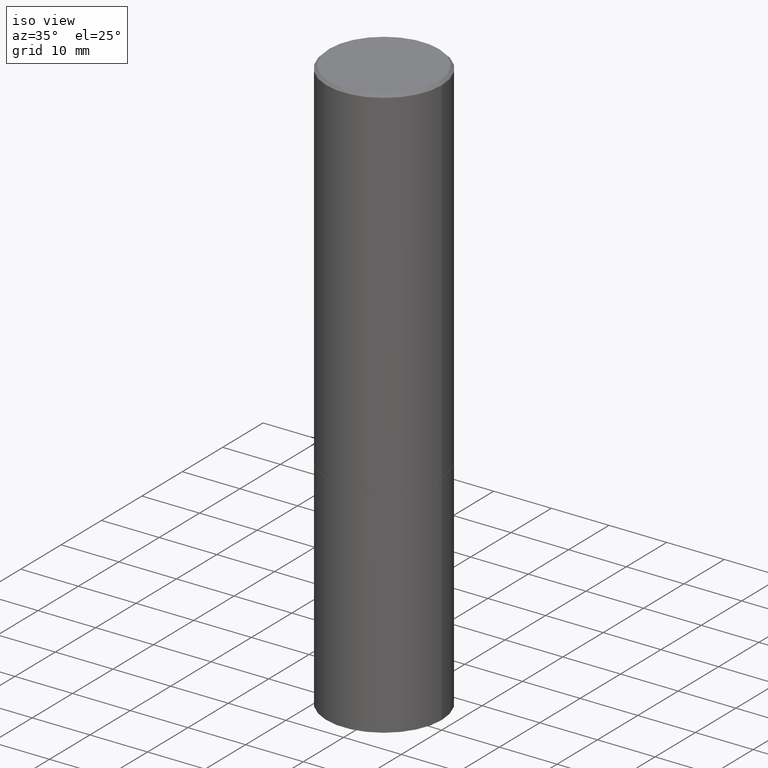
[diagram: clean part render]
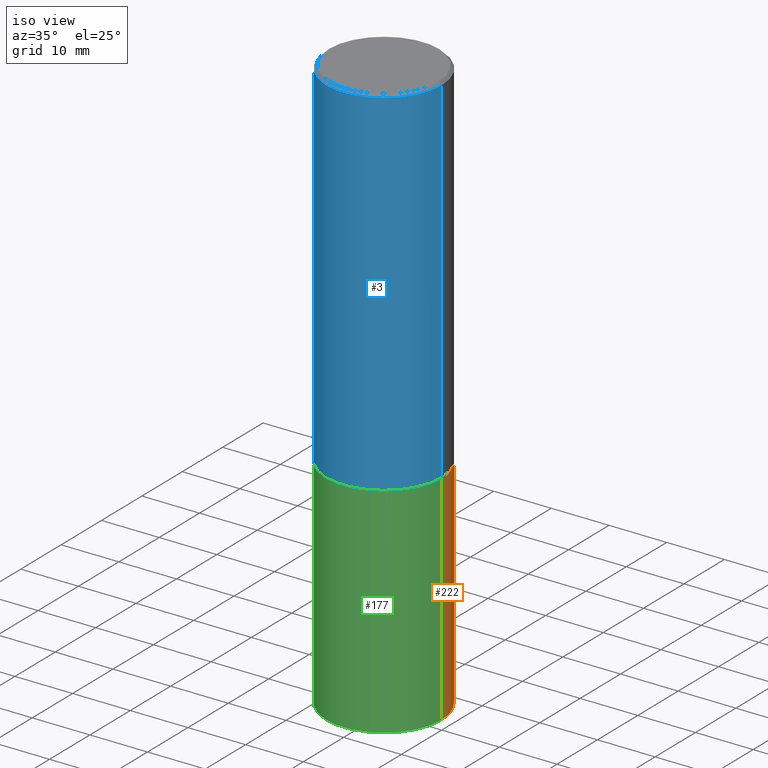
[diagram: same view with three faces highlighted in distinct colors, each labeled with its STEP entity id]
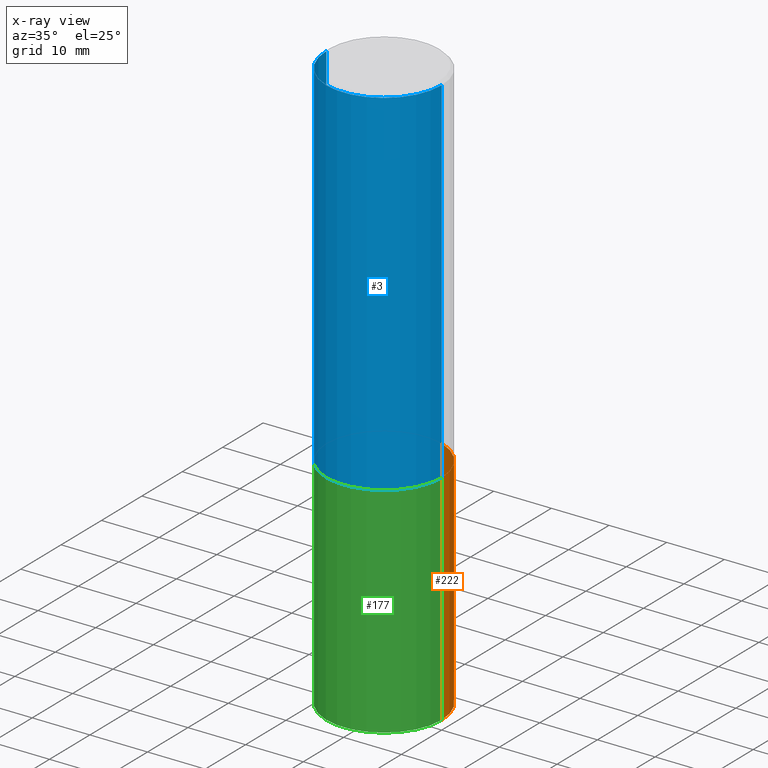
[diagram: x-ray of the same camera — body ghosted, the three highlighted faces saturated]
A machine part, iso view with three faces highlighted in distinct colors.
The next image is the same camera in x-ray (body ghosted, the three faces saturated) — at least one of them is partly hidden behind the body in this view.
Their STEP definitions:

[orange] entity #222 — the highlighted cylindrical surface (partial cylindrical patch) has radius 10 mm, axis along (-0, 0, 1).
#5 = AXIS2_PLACEMENT_3D ( 'NONE', #167, #360, #86 ) ;
#9 = EDGE_CURVE ( 'NONE', #346, #365, #58, .T. ) ;
#19 = DIRECTION ( 'NONE',  ( -2.445468806185136597E-29, 3.491481338843145583E-15, 1.000000000000000000 ) ) ;
#24 = CARTESIAN_POINT ( 'NONE',  ( 0.3937000000000000499, -1.127154920618731776E-14, -2.440900000000000070 ) ) ;
#25 = CARTESIAN_POINT ( 'NONE',  ( -0.3937000000000000499, 2.797406750687514786E-15, -1.936584745033356735E-29 ) ) ;
#32 = EDGE_CURVE ( 'NONE', #277, #221, #299, .T. ) ;
#38 = CYLINDRICAL_SURFACE ( 'NONE', #308, 0.3937000000000000499 ) ;
#43 = EDGE_LOOP ( 'NONE', ( #213, #45, #242, #122 ) ) ;
#45 = ORIENTED_EDGE ( 'NONE', *, *, #32, .T. ) ;
#48 = CARTESIAN_POINT ( 'NONE',  ( 5.969144809017300159E-29, -8.522356799982234543E-15, -2.440900000000000070 ) ) ;
#50 = DIRECTION ( 'NONE',  ( -2.445468806185136877E-29, 3.491481338843145188E-15, 1.000000000000000000 ) ) ;
#58 = LINE ( 'NONE', #88, #89 ) ;
#61 = DIRECTION ( 'NONE',  ( -2.445468806185136877E-29, 3.491481338843145188E-15, 1.000000000000000000 ) ) ;
#86 = DIRECTION ( 'NONE',  ( 1.000000000000000000, -6.982962677686267499E-15, 0.000000000000000000 ) ) ;
#88 = CARTESIAN_POINT ( 'NONE',  ( 0.3937000000000000499, -2.749192406205083217E-15, 1.919750796630860172E-29 ) ) ;
#89 = VECTOR ( 'NONE', #61, 39.37007874015748143 ) ;
#101 = CARTESIAN_POINT ( 'NONE',  ( -0.3937000000000000499, -8.336752664816334981E-15, -3.937000000000000277 ) ) ;
#108 = EDGE_CURVE ( 'NONE', #346, #277, #270, .T. ) ;
#122 = ORIENTED_EDGE ( 'NONE', *, *, #9, .F. ) ;
#139 = CIRCLE ( 'NONE', #286, 0.3937000000000000499 ) ;
#154 = DIRECTION ( 'NONE',  ( 1.000000000000000000, -6.982962677686265922E-15, 4.876176775795935793E-29 ) ) ;
#162 = CARTESIAN_POINT ( 'NONE',  ( 0.3937000000000000499, -1.649515443723054663E-14, -3.937000000000000277 ) ) ;
#167 = CARTESIAN_POINT ( 'NONE',  ( 9.627810689950883669E-29, -1.374596203102546341E-14, -3.937000000000000277 ) ) ;
#184 = CARTESIAN_POINT ( 'NONE',  ( -0.3937000000000000499, -8.336752664816334981E-15, -2.440900000000000070 ) ) ;
#210 = DIRECTION ( 'NONE',  ( -2.445468806185136597E-29, 3.491481338843145583E-15, 1.000000000000000000 ) ) ;
#213 = ORIENTED_EDGE ( 'NONE', *, *, #108, .T. ) ;
#221 = VERTEX_POINT ( 'NONE', #184 ) ;
#222 = ADVANCED_FACE ( 'NONE', ( #237 ), #38, .T. ) ;
#237 = FACE_OUTER_BOUND ( 'NONE', #43, .T. ) ;
#242 = ORIENTED_EDGE ( 'NONE', *, *, #316, .F. ) ;
#249 = DIRECTION ( 'NONE',  ( 1.000000000000000000, -6.982962677686267499E-15, 0.000000000000000000 ) ) ;
#265 = CARTESIAN_POINT ( 'NONE',  ( 0.000000000000000000, 0.000000000000000000, 0.000000000000000000 ) ) ;
#270 = CIRCLE ( 'NONE', #5, 0.3937000000000000499 ) ;
#277 = VERTEX_POINT ( 'NONE', #101 ) ;
#286 = AXIS2_PLACEMENT_3D ( 'NONE', #48, #19, #249 ) ;
#299 = LINE ( 'NONE', #25, #313 ) ;
#308 = AXIS2_PLACEMENT_3D ( 'NONE', #265, #210, #154 ) ;
#313 = VECTOR ( 'NONE', #50, 39.37007874015748143 ) ;
#316 = EDGE_CURVE ( 'NONE', #365, #221, #139, .T. ) ;
#346 = VERTEX_POINT ( 'NONE', #162 ) ;
#360 = DIRECTION ( 'NONE',  ( -2.445468806185136597E-29, 3.491481338843145583E-15, 1.000000000000000000 ) ) ;
#365 = VERTEX_POINT ( 'NONE', #24 ) ;

[blue] entity #3 — the highlighted cylindrical surface (partial cylindrical patch) has radius 10 mm, axis along (-0, 0, 1).
#1 = EDGE_CURVE ( 'NONE', #264, #202, #20, .T. ) ;
#3 = ADVANCED_FACE ( 'NONE', ( #133 ), #112, .T. ) ;
#16 = VERTEX_POINT ( 'NONE', #329 ) ;
#20 = LINE ( 'NONE', #197, #280 ) ;
#28 = AXIS2_PLACEMENT_3D ( 'NONE', #109, #333, #83 ) ;
#29 = CARTESIAN_POINT ( 'NONE',  ( 0.000000000000000000, 0.000000000000000000, 0.000000000000000000 ) ) ;
#40 = ORIENTED_EDGE ( 'NONE', *, *, #110, .F. ) ;
#41 = CARTESIAN_POINT ( 'NONE',  ( 5.966699340211115678E-29, -8.518865318643391536E-15, -2.439900000000000180 ) ) ;
#49 = EDGE_LOOP ( 'NONE', ( #240, #362, #69, #40 ) ) ;
#53 = CARTESIAN_POINT ( 'NONE',  ( 0.3936999999999997724, -2.770807688499513762E-15, -0.02000000000000009062 ) ) ;
#69 = ORIENTED_EDGE ( 'NONE', *, *, #292, .T. ) ;
#73 = DIRECTION ( 'NONE',  ( -2.445468806185136597E-29, 3.491481338843145583E-15, 1.000000000000000000 ) ) ;
#83 = DIRECTION ( 'NONE',  ( 1.000000000000000000, -6.982962677686266711E-15, 0.000000000000000000 ) ) ;
#100 = VERTEX_POINT ( 'NONE', #53 ) ;
#105 = CIRCLE ( 'NONE', #175, 0.3937000000000000499 ) ;
#109 = CARTESIAN_POINT ( 'NONE',  ( 4.890937612370295054E-31, -6.982962677686322424E-17, -0.02000000000000009062 ) ) ;
#110 = EDGE_CURVE ( 'NONE', #202, #100, #281, .T. ) ;
#112 = CYLINDRICAL_SURFACE ( 'NONE', #180, 0.3936999999999998834 ) ;
#133 = FACE_OUTER_BOUND ( 'NONE', #49, .T. ) ;
#175 = AXIS2_PLACEMENT_3D ( 'NONE', #41, #73, #212 ) ;
#180 = AXIS2_PLACEMENT_3D ( 'NONE', #29, #232, #224 ) ;
#196 = DIRECTION ( 'NONE',  ( -2.445468806185136877E-29, 3.491481338843145188E-15, 1.000000000000000000 ) ) ;
#197 = CARTESIAN_POINT ( 'NONE',  ( -0.3936999999999998834, 2.797406750687513603E-15, -1.936584745033355895E-29 ) ) ;
#202 = VERTEX_POINT ( 'NONE', #283 ) ;
#208 = EDGE_CURVE ( 'NONE', #264, #16, #105, .T. ) ;
#212 = DIRECTION ( 'NONE',  ( 1.000000000000000000, -6.982962677686265133E-15, 0.000000000000000000 ) ) ;
#224 = DIRECTION ( 'NONE',  ( 1.000000000000000000, -6.982962677686266711E-15, 4.876176775795935793E-29 ) ) ;
#232 = DIRECTION ( 'NONE',  ( -2.445468806185136597E-29, 3.491481338843145583E-15, 1.000000000000000000 ) ) ;
#240 = ORIENTED_EDGE ( 'NONE', *, *, #1, .F. ) ;
#264 = VERTEX_POINT ( 'NONE', #324 ) ;
#280 = VECTOR ( 'NONE', #336, 39.37007874015748143 ) ;
#281 = CIRCLE ( 'NONE', #28, 0.3936999999999997724 ) ;
#283 = CARTESIAN_POINT ( 'NONE',  ( -0.3936999999999997724, 2.679362779428217946E-15, -0.02000000000000009062 ) ) ;
#292 = EDGE_CURVE ( 'NONE', #16, #100, #359, .T. ) ;
#302 = CARTESIAN_POINT ( 'NONE',  ( 0.3936999999999998834, -2.749192406205082428E-15, 1.919750796630859331E-29 ) ) ;
#324 = CARTESIAN_POINT ( 'NONE',  ( -0.3937000000000001054, -1.496940722022610659E-15, -2.439900000000000180 ) ) ;
#329 = CARTESIAN_POINT ( 'NONE',  ( 0.3937000000000000499, -1.126805772484847318E-14, -2.439900000000000180 ) ) ;
#333 = DIRECTION ( 'NONE',  ( -2.445468806185136597E-29, 3.491481338843145583E-15, 1.000000000000000000 ) ) ;
#336 = DIRECTION ( 'NONE',  ( -2.445468806185136877E-29, 3.491481338843145188E-15, 1.000000000000000000 ) ) ;
#357 = VECTOR ( 'NONE', #196, 39.37007874015748143 ) ;
#359 = LINE ( 'NONE', #302, #357 ) ;
#362 = ORIENTED_EDGE ( 'NONE', *, *, #208, .T. ) ;

[green] entity #177 — the highlighted cylindrical surface (partial cylindrical patch) has radius 10 mm, axis along (-0, 0, 1).
#9 = EDGE_CURVE ( 'NONE', #346, #365, #58, .T. ) ;
#10 = ORIENTED_EDGE ( 'NONE', *, *, #32, .F. ) ;
#24 = CARTESIAN_POINT ( 'NONE',  ( 0.3937000000000000499, -1.127154920618731776E-14, -2.440900000000000070 ) ) ;
#25 = CARTESIAN_POINT ( 'NONE',  ( -0.3937000000000000499, 2.797406750687514786E-15, -1.936584745033356735E-29 ) ) ;
#32 = EDGE_CURVE ( 'NONE', #277, #221, #299, .T. ) ;
#50 = DIRECTION ( 'NONE',  ( -2.445468806185136877E-29, 3.491481338843145188E-15, 1.000000000000000000 ) ) ;
#58 = LINE ( 'NONE', #88, #89 ) ;
#61 = DIRECTION ( 'NONE',  ( -2.445468806185136877E-29, 3.491481338843145188E-15, 1.000000000000000000 ) ) ;
#68 = DIRECTION ( 'NONE',  ( 1.000000000000000000, -6.982962677686267499E-15, 0.000000000000000000 ) ) ;
#80 = ORIENTED_EDGE ( 'NONE', *, *, #124, .T. ) ;
#85 = AXIS2_PLACEMENT_3D ( 'NONE', #345, #287, #68 ) ;
#88 = CARTESIAN_POINT ( 'NONE',  ( 0.3937000000000000499, -2.749192406205083217E-15, 1.919750796630860172E-29 ) ) ;
#89 = VECTOR ( 'NONE', #61, 39.37007874015748143 ) ;
#95 = CYLINDRICAL_SURFACE ( 'NONE', #217, 0.3937000000000000499 ) ;
#96 = ORIENTED_EDGE ( 'NONE', *, *, #205, .F. ) ;
#97 = FACE_OUTER_BOUND ( 'NONE', #293, .T. ) ;
#101 = CARTESIAN_POINT ( 'NONE',  ( -0.3937000000000000499, -8.336752664816334981E-15, -3.937000000000000277 ) ) ;
#124 = EDGE_CURVE ( 'NONE', #277, #346, #296, .T. ) ;
#157 = CARTESIAN_POINT ( 'NONE',  ( 0.000000000000000000, 0.000000000000000000, 0.000000000000000000 ) ) ;
#162 = CARTESIAN_POINT ( 'NONE',  ( 0.3937000000000000499, -1.649515443723054663E-14, -3.937000000000000277 ) ) ;
#177 = ADVANCED_FACE ( 'NONE', ( #97 ), #95, .T. ) ;
#181 = AXIS2_PLACEMENT_3D ( 'NONE', #209, #343, #291 ) ;
#182 = DIRECTION ( 'NONE',  ( 1.000000000000000000, -6.982962677686265922E-15, 4.876176775795935793E-29 ) ) ;
#184 = CARTESIAN_POINT ( 'NONE',  ( -0.3937000000000000499, -8.336752664816334981E-15, -2.440900000000000070 ) ) ;
#189 = ORIENTED_EDGE ( 'NONE', *, *, #9, .T. ) ;
#205 = EDGE_CURVE ( 'NONE', #221, #365, #303, .T. ) ;
#209 = CARTESIAN_POINT ( 'NONE',  ( 9.627810689950883669E-29, -1.374596203102546341E-14, -3.937000000000000277 ) ) ;
#217 = AXIS2_PLACEMENT_3D ( 'NONE', #157, #243, #182 ) ;
#221 = VERTEX_POINT ( 'NONE', #184 ) ;
#243 = DIRECTION ( 'NONE',  ( -2.445468806185136597E-29, 3.491481338843145583E-15, 1.000000000000000000 ) ) ;
#277 = VERTEX_POINT ( 'NONE', #101 ) ;
#287 = DIRECTION ( 'NONE',  ( -2.445468806185136597E-29, 3.491481338843145583E-15, 1.000000000000000000 ) ) ;
#291 = DIRECTION ( 'NONE',  ( 1.000000000000000000, -6.982962677686267499E-15, 0.000000000000000000 ) ) ;
#293 = EDGE_LOOP ( 'NONE', ( #10, #80, #189, #96 ) ) ;
#296 = CIRCLE ( 'NONE', #181, 0.3937000000000000499 ) ;
#299 = LINE ( 'NONE', #25, #313 ) ;
#303 = CIRCLE ( 'NONE', #85, 0.3937000000000000499 ) ;
#313 = VECTOR ( 'NONE', #50, 39.37007874015748143 ) ;
#343 = DIRECTION ( 'NONE',  ( -2.445468806185136597E-29, 3.491481338843145583E-15, 1.000000000000000000 ) ) ;
#345 = CARTESIAN_POINT ( 'NONE',  ( 5.969144809017300159E-29, -8.522356799982234543E-15, -2.440900000000000070 ) ) ;
#346 = VERTEX_POINT ( 'NONE', #162 ) ;
#365 = VERTEX_POINT ( 'NONE', #24 ) ;